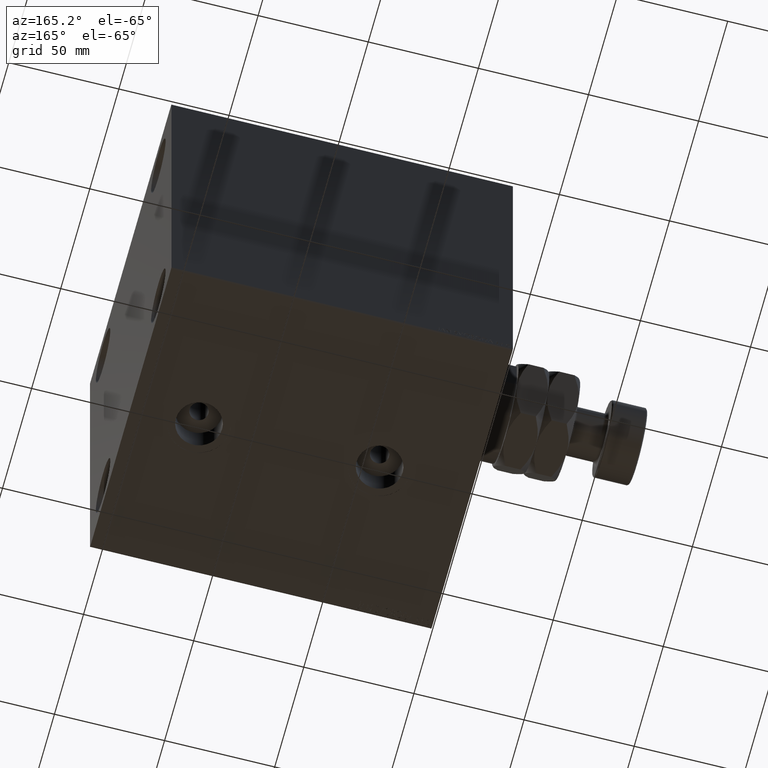
[diagram: clean part render]
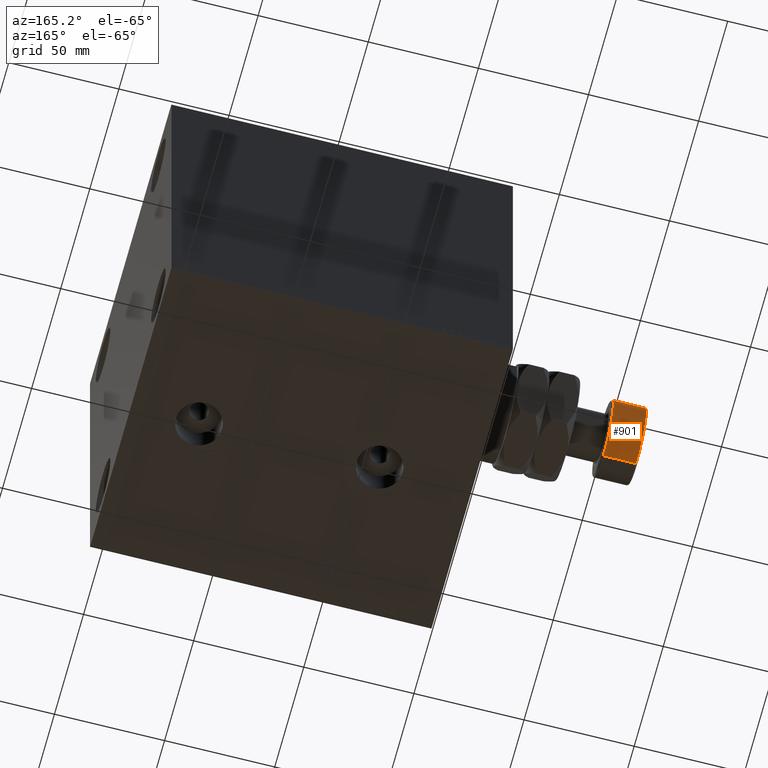
[diagram: same view with one face highlighted and labeled with its STEP entity id]
A machine part, auxiliary view. The second image highlights one B-rep face of the part: STEP entity #901.
In plain terms, the highlighted cylindrical surface (partial cylindrical patch) has radius 17.5 mm, axis along (1, -0, -0).
Its self-contained STEP definition (entity closure, byte-faithful):
#80 = CARTESIAN_POINT ( 'NONE',  ( 0.000000000000000000, 0.000000000000000000, 60.00000000000000000 ) ) ;
#901 = ADVANCED_FACE ( 'NONE', ( #40081 ), #22711, .T. ) ;
#2045 = EDGE_CURVE ( 'NONE', #23807, #28997, #36124, .T. ) ;
#2419 = CARTESIAN_POINT ( 'NONE',  ( 17.50000000000000355, 2.143131898507868643E-15, 44.50000000000000000 ) ) ;
#4751 = VECTOR ( 'NONE', #7600, 1000.000000000000000 ) ;
#6994 = CARTESIAN_POINT ( 'NONE',  ( 0.000000000000000000, 0.000000000000000000, 44.50000000000000000 ) ) ;
#7600 = DIRECTION ( 'NONE',  ( -0.000000000000000000, -0.000000000000000000, -1.000000000000000000 ) ) ;
#8181 = DIRECTION ( 'NONE',  ( -1.000000000000000000, 0.000000000000000000, 0.000000000000000000 ) ) ;
#11873 = CARTESIAN_POINT ( 'NONE',  ( -17.50000000000000355, 0.000000000000000000, 44.50000000000000000 ) ) ;
#13132 = ORIENTED_EDGE ( 'NONE', *, *, #2045, .T. ) ;
#14383 = DIRECTION ( 'NONE',  ( 1.000000000000000000, 0.000000000000000000, 0.000000000000000000 ) ) ;
#15098 = AXIS2_PLACEMENT_3D ( 'NONE', #6994, #35814, #14383 ) ;
#15595 = AXIS2_PLACEMENT_3D ( 'NONE', #43451, #18227, #25831 ) ;
#15636 = ORIENTED_EDGE ( 'NONE', *, *, #20373, .T. ) ;
#15859 = CIRCLE ( 'NONE', #15098, 17.50000000000000355 ) ;
#17175 = EDGE_CURVE ( 'NONE', #23807, #45930, #32592, .T. ) ;
#18227 = DIRECTION ( 'NONE',  ( 0.000000000000000000, 0.000000000000000000, -1.000000000000000000 ) ) ;
#18262 = CARTESIAN_POINT ( 'NONE',  ( 17.50000000000000355, 2.143131898507868643E-15, 59.50000000000000000 ) ) ;
#20373 = EDGE_CURVE ( 'NONE', #28997, #26299, #23216, .T. ) ;
#21413 = CARTESIAN_POINT ( 'NONE',  ( -17.50000000000000355, 0.000000000000000000, 60.00000000000000000 ) ) ;
#22711 = CYLINDRICAL_SURFACE ( 'NONE', #38413, 17.50000000000000355 ) ;
#23216 = LINE ( 'NONE', #41310, #42830 ) ;
#23807 = VERTEX_POINT ( 'NONE', #32801 ) ;
#25831 = DIRECTION ( 'NONE',  ( 1.000000000000000000, 0.000000000000000000, 0.000000000000000000 ) ) ;
#26299 = VERTEX_POINT ( 'NONE', #2419 ) ;
#28997 = VERTEX_POINT ( 'NONE', #18262 ) ;
#29055 = ORIENTED_EDGE ( 'NONE', *, *, #45340, .T. ) ;
#30639 = EDGE_LOOP ( 'NONE', ( #13132, #15636, #29055, #46828 ) ) ;
#32592 = LINE ( 'NONE', #21413, #4751 ) ;
#32801 = CARTESIAN_POINT ( 'NONE',  ( -17.50000000000000355, 0.000000000000000000, 59.50000000000000000 ) ) ;
#35814 = DIRECTION ( 'NONE',  ( -0.000000000000000000, -0.000000000000000000, 1.000000000000000000 ) ) ;
#36124 = CIRCLE ( 'NONE', #15595, 17.50000000000000355 ) ;
#38413 = AXIS2_PLACEMENT_3D ( 'NONE', #80, #40791, #8181 ) ;
#40081 = FACE_OUTER_BOUND ( 'NONE', #30639, .T. ) ;
#40791 = DIRECTION ( 'NONE',  ( -0.000000000000000000, -0.000000000000000000, -1.000000000000000000 ) ) ;
#41310 = CARTESIAN_POINT ( 'NONE',  ( 17.50000000000000355, 2.143131898507868643E-15, 60.00000000000000000 ) ) ;
#41546 = DIRECTION ( 'NONE',  ( -0.000000000000000000, -0.000000000000000000, -1.000000000000000000 ) ) ;
#42830 = VECTOR ( 'NONE', #41546, 1000.000000000000000 ) ;
#43451 = CARTESIAN_POINT ( 'NONE',  ( 0.000000000000000000, 0.000000000000000000, 59.50000000000000000 ) ) ;
#45340 = EDGE_CURVE ( 'NONE', #26299, #45930, #15859, .T. ) ;
#45930 = VERTEX_POINT ( 'NONE', #11873 ) ;
#46828 = ORIENTED_EDGE ( 'NONE', *, *, #17175, .F. ) ;